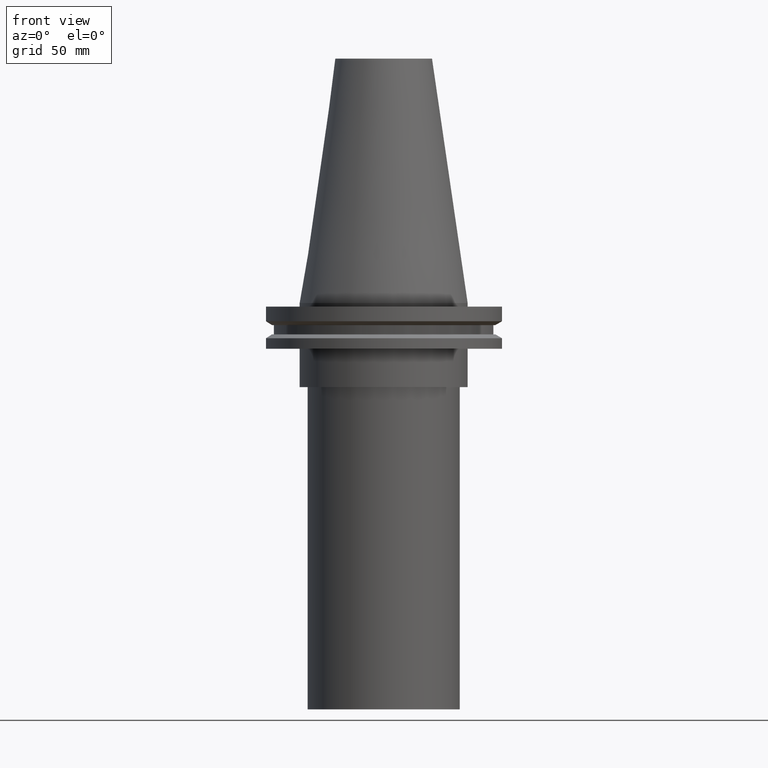
[diagram: clean part render]
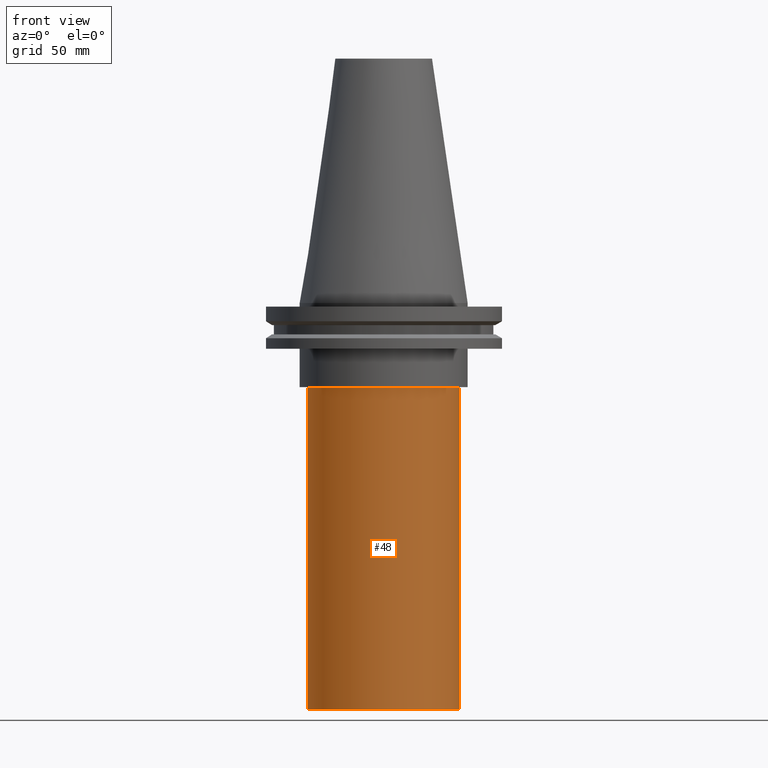
[diagram: same view with one face highlighted and labeled with its STEP entity id]
A machine part, front view. The second image highlights one B-rep face of the part: STEP entity #48.
In plain terms, the highlighted cylindrical surface (bore or boss wall) has radius 31.635 mm, axis along (-0, -0, 1).
Its self-contained STEP definition (entity closure, byte-faithful):
#5 = CARTESIAN_POINT ( 'NONE',  ( 0.000000000000000000, 0.000000000000000000, -168.9999999999999432 ) ) ;
#42 = ORIENTED_EDGE ( 'NONE', *, *, #277, .F. ) ;
#46 = CARTESIAN_POINT ( 'NONE',  ( 0.000000000000000000, 0.000000000000000000, 0.000000000000000000 ) ) ;
#48 = ADVANCED_FACE ( 'NONE', ( #51, #181 ), #152, .T. ) ;
#51 = FACE_OUTER_BOUND ( 'NONE', #383, .T. ) ;
#58 = DIRECTION ( 'NONE',  ( 1.000000000000000000, 0.000000000000000000, 0.000000000000000000 ) ) ;
#96 = VERTEX_POINT ( 'NONE', #282 ) ;
#152 = CYLINDRICAL_SURFACE ( 'NONE', #324, 31.63500000000000512 ) ;
#172 = AXIS2_PLACEMENT_3D ( 'NONE', #307, #213, #334 ) ;
#176 = DIRECTION ( 'NONE',  ( -0.000000000000000000, -0.000000000000000000, 1.000000000000000000 ) ) ;
#181 = FACE_OUTER_BOUND ( 'NONE', #234, .T. ) ;
#187 = DIRECTION ( 'NONE',  ( -0.000000000000000000, -0.000000000000000000, 1.000000000000000000 ) ) ;
#189 = CIRCLE ( 'NONE', #172, 31.63500000000000512 ) ;
#213 = DIRECTION ( 'NONE',  ( -0.000000000000000000, -0.000000000000000000, 1.000000000000000000 ) ) ;
#234 = EDGE_LOOP ( 'NONE', ( #271 ) ) ;
#245 = EDGE_CURVE ( 'NONE', #96, #96, #341, .T. ) ;
#271 = ORIENTED_EDGE ( 'NONE', *, *, #245, .T. ) ;
#277 = EDGE_CURVE ( 'NONE', #315, #315, #189, .T. ) ;
#282 = CARTESIAN_POINT ( 'NONE',  ( 31.63500000000000512, 0.000000000000000000, -168.9999999999999432 ) ) ;
#307 = CARTESIAN_POINT ( 'NONE',  ( 0.000000000000000000, 0.000000000000000000, -35.00000000000000000 ) ) ;
#315 = VERTEX_POINT ( 'NONE', #340 ) ;
#324 = AXIS2_PLACEMENT_3D ( 'NONE', #46, #176, #385 ) ;
#334 = DIRECTION ( 'NONE',  ( 1.000000000000000000, 0.000000000000000000, 0.000000000000000000 ) ) ;
#340 = CARTESIAN_POINT ( 'NONE',  ( 31.63500000000000512, 0.000000000000000000, -35.00000000000000000 ) ) ;
#341 = CIRCLE ( 'NONE', #395, 31.63500000000000512 ) ;
#383 = EDGE_LOOP ( 'NONE', ( #42 ) ) ;
#385 = DIRECTION ( 'NONE',  ( 1.000000000000000000, 0.000000000000000000, 0.000000000000000000 ) ) ;
#395 = AXIS2_PLACEMENT_3D ( 'NONE', #5, #187, #58 ) ;